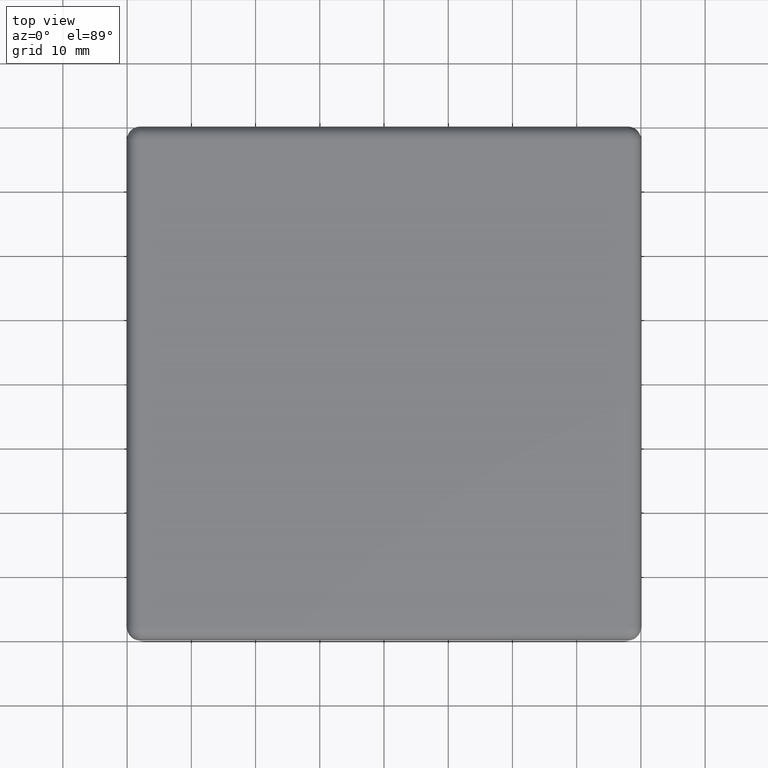
[diagram: clean part render]
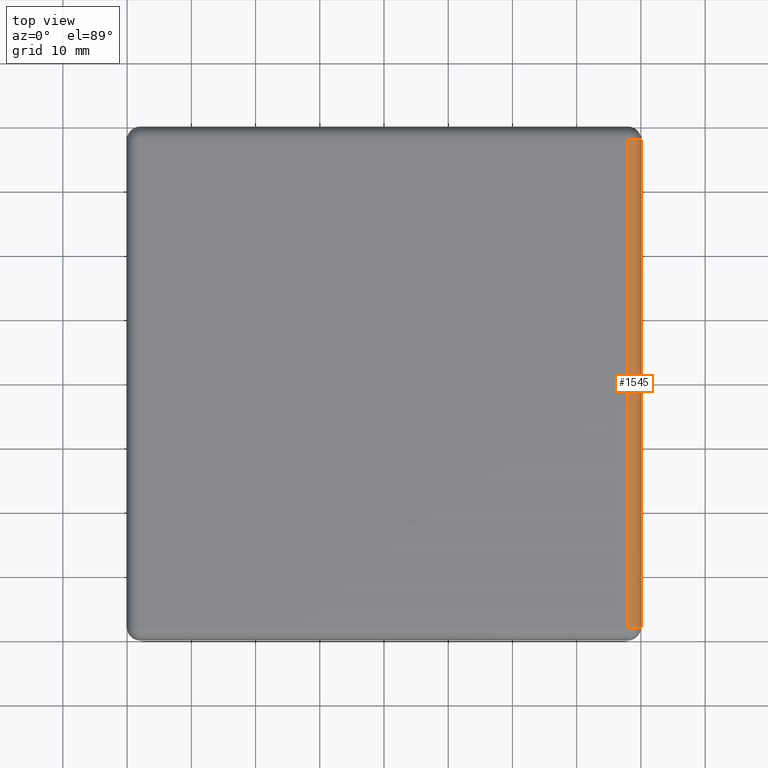
[diagram: same view with one face highlighted and labeled with its STEP entity id]
A machine part, top view. The second image highlights one B-rep face of the part: STEP entity #1545.
In plain terms, the highlighted cylindrical surface (edge-blend (fillet) strip) has radius 2 mm, axis along (0, -1, 0).
Its self-contained STEP definition (entity closure, byte-faithful):
#68=CYLINDRICAL_SURFACE('',#1643,2.);
#99=FACE_OUTER_BOUND('',#191,.T.);
#191=EDGE_LOOP('',(#1035,#1036,#1037,#1038));
#294=LINE('',#2301,#422);
#295=LINE('',#2306,#423);
#422=VECTOR('',#1831,75.99999999968);
#423=VECTOR('',#1836,75.99999999968);
#544=CIRCLE('',#1644,2.);
#545=CIRCLE('',#1645,2.);
#631=VERTEX_POINT('',#2293);
#633=VERTEX_POINT('',#2299);
#634=VERTEX_POINT('',#2303);
#635=VERTEX_POINT('',#2305);
#791=EDGE_CURVE('',#631,#633,#294,.T.);
#792=EDGE_CURVE('',#634,#633,#544,.T.);
#793=EDGE_CURVE('',#634,#635,#295,.T.);
#794=EDGE_CURVE('',#631,#635,#545,.T.);
#1035=ORIENTED_EDGE('',*,*,#791,.T.);
#1036=ORIENTED_EDGE('',*,*,#792,.F.);
#1037=ORIENTED_EDGE('',*,*,#793,.T.);
#1038=ORIENTED_EDGE('',*,*,#794,.F.);
#1545=ADVANCED_FACE('',(#99),#68,.T.);
#1643=AXIS2_PLACEMENT_3D('',#2302,#1832,#1833);
#1644=AXIS2_PLACEMENT_3D('',#2304,#1834,#1835);
#1645=AXIS2_PLACEMENT_3D('',#2307,#1837,#1838);
#1831=DIRECTION('',(0.,1.,0.));
#1832=DIRECTION('center_axis',(0.,-1.,0.));
#1833=DIRECTION('ref_axis',(1.,0.,0.));
#1834=DIRECTION('center_axis',(0.,1.,0.));
#1835=DIRECTION('ref_axis',(0.,0.,1.));
#1836=DIRECTION('',(0.,-1.,0.));
#1837=DIRECTION('center_axis',(0.,-1.,0.));
#1838=DIRECTION('ref_axis',(1.,0.,0.));
#2293=CARTESIAN_POINT('',(39.99999999984,2.,0.999999333988));
#2299=CARTESIAN_POINT('',(39.99999999984,77.99999999968,0.999999333988));
#2301=CARTESIAN_POINT('',(39.99999999984,2.,0.999999333988));
#2302=CARTESIAN_POINT('Origin',(37.99999999984,2.,0.999999333988));
#2303=CARTESIAN_POINT('',(37.99999999984,77.99999999968,2.999999333988));
#2304=CARTESIAN_POINT('Origin',(37.99999999984,77.99999999968,0.999999333988));
#2305=CARTESIAN_POINT('',(37.99999999984,2.,2.999999333988));
#2306=CARTESIAN_POINT('',(37.99999999984,77.99999999968,2.999999333988));
#2307=CARTESIAN_POINT('Origin',(37.99999999984,2.,0.999999333988));